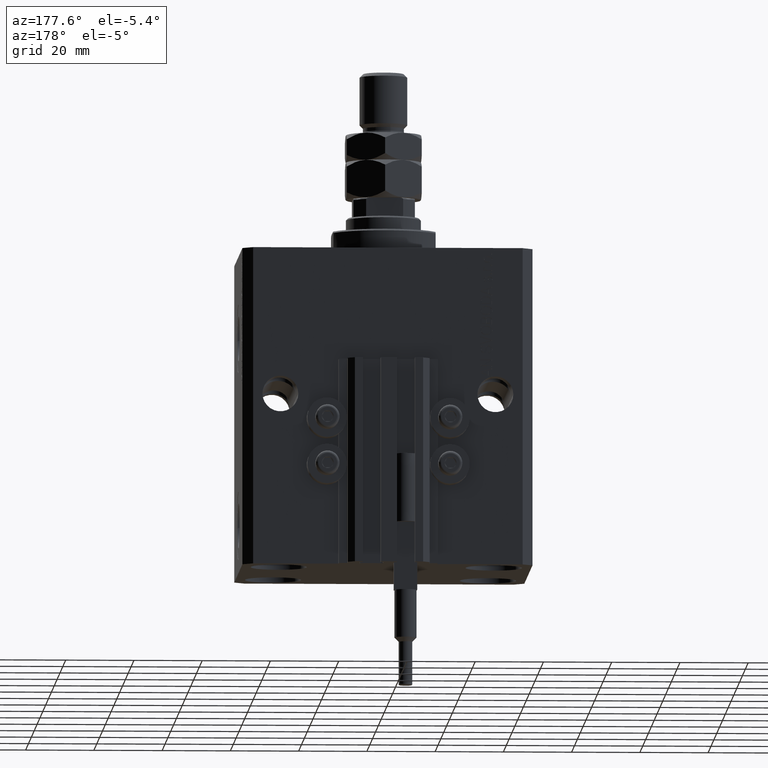
[diagram: clean part render]
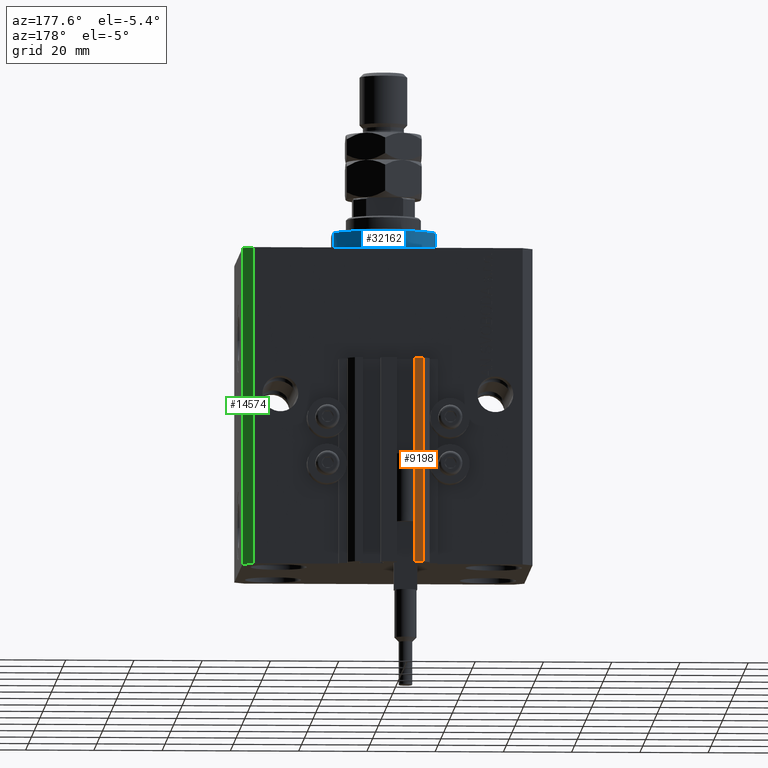
[diagram: same view with three faces highlighted in distinct colors, each labeled with its STEP entity id]
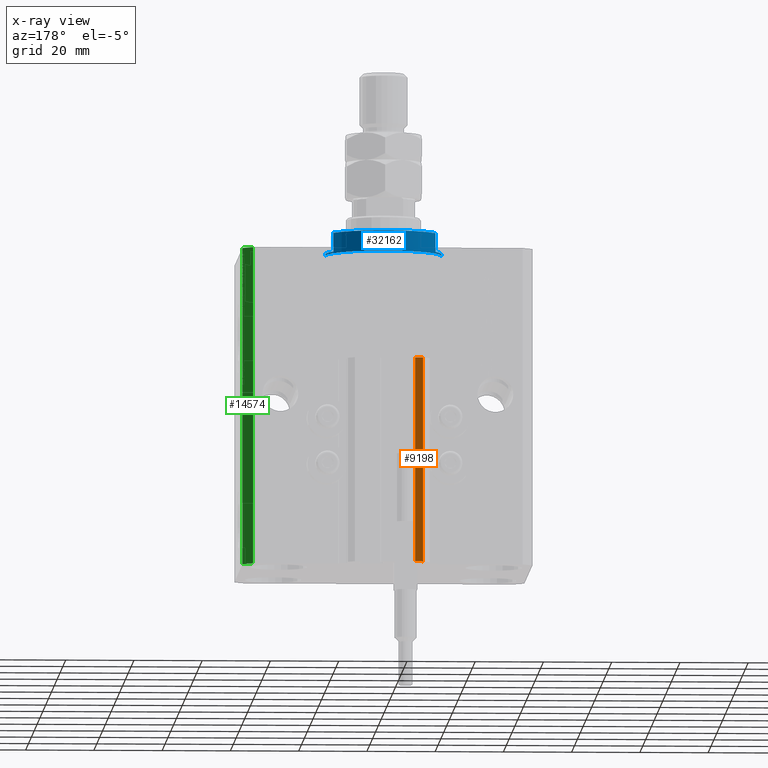
[diagram: x-ray of the same camera — body ghosted, the three highlighted faces saturated]
A machine part, auxiliary view with three faces highlighted in distinct colors.
The next image is the same camera in x-ray (body ghosted, the three faces saturated) — at least one of them is partly hidden behind the body in this view.
Their STEP definitions:

[orange] entity #9198 — the highlighted planar face has unit normal (0, 1, 0).
#1299 = CARTESIAN_POINT ( 'NONE',  ( -7.650000000000002132, 39.49999999999999289, -93.00000000000000000 ) ) ;
#1666 = VECTOR ( 'NONE', #2473, 1000.000000000000000 ) ;
#1741 = LINE ( 'NONE', #48228, #31364 ) ;
#2199 = EDGE_CURVE ( 'NONE', #26893, #36979, #32834, .T. ) ;
#2216 = LINE ( 'NONE', #17574, #1666 ) ;
#2473 = DIRECTION ( 'NONE',  ( 0.000000000000000000, 0.000000000000000000, 1.000000000000000000 ) ) ;
#5850 = CARTESIAN_POINT ( 'NONE',  ( -7.650000000000002132, 39.49999999999999289, -93.00000000000000000 ) ) ;
#6522 = CARTESIAN_POINT ( 'NONE',  ( -7.650000000000002132, 39.49999999999999289, -33.00000000000000000 ) ) ;
#8369 = CARTESIAN_POINT ( 'NONE',  ( -7.650000000000002132, 39.49999999999999289, -93.00000000000000000 ) ) ;
#9198 = ADVANCED_FACE ( 'NONE', ( #22256 ), #21479, .T. ) ;
#11066 = ORIENTED_EDGE ( 'NONE', *, *, #38648, .F. ) ;
#13662 = DIRECTION ( 'NONE',  ( 0.000000000000000000, 0.000000000000000000, 1.000000000000000000 ) ) ;
#17420 = DIRECTION ( 'NONE',  ( 0.000000000000000000, 1.000000000000000000, -0.000000000000000000 ) ) ;
#17574 = CARTESIAN_POINT ( 'NONE',  ( -7.650000000000002132, 39.49999999999999289, -93.00000000000000000 ) ) ;
#17851 = ORIENTED_EDGE ( 'NONE', *, *, #21621, .F. ) ;
#19033 = CARTESIAN_POINT ( 'NONE',  ( -7.650000000000002132, 39.49999999999999289, -33.00000000000000000 ) ) ;
#19487 = VERTEX_POINT ( 'NONE', #47500 ) ;
#19995 = VECTOR ( 'NONE', #28299, 1000.000000000000000 ) ;
#21479 = PLANE ( 'NONE',  #28546 ) ;
#21621 = EDGE_CURVE ( 'NONE', #40029, #19487, #41397, .T. ) ;
#22256 = FACE_OUTER_BOUND ( 'NONE', #32160, .T. ) ;
#23164 = EDGE_CURVE ( 'NONE', #36979, #19487, #1741, .T. ) ;
#26893 = VERTEX_POINT ( 'NONE', #8369 ) ;
#28299 = DIRECTION ( 'NONE',  ( -1.000000000000000000, 0.000000000000000000, 0.000000000000000000 ) ) ;
#28546 = AXIS2_PLACEMENT_3D ( 'NONE', #5850, #17420, #13662 ) ;
#31295 = VECTOR ( 'NONE', #37595, 1000.000000000000000 ) ;
#31364 = VECTOR ( 'NONE', #44442, 1000.000000000000000 ) ;
#32160 = EDGE_LOOP ( 'NONE', ( #17851, #11066, #48623, #32418 ) ) ;
#32418 = ORIENTED_EDGE ( 'NONE', *, *, #23164, .T. ) ;
#32834 = LINE ( 'NONE', #1299, #19995 ) ;
#36979 = VERTEX_POINT ( 'NONE', #39005 ) ;
#37595 = DIRECTION ( 'NONE',  ( -1.000000000000000000, 0.000000000000000000, 0.000000000000000000 ) ) ;
#38648 = EDGE_CURVE ( 'NONE', #26893, #40029, #2216, .T. ) ;
#39005 = CARTESIAN_POINT ( 'NONE',  ( -10.00000000000000000, 39.49999999999999289, -93.00000000000000000 ) ) ;
#40029 = VERTEX_POINT ( 'NONE', #19033 ) ;
#41397 = LINE ( 'NONE', #6522, #31295 ) ;
#44442 = DIRECTION ( 'NONE',  ( 0.000000000000000000, 0.000000000000000000, 1.000000000000000000 ) ) ;
#47500 = CARTESIAN_POINT ( 'NONE',  ( -10.00000000000000000, 39.49999999999999289, -33.00000000000000000 ) ) ;
#48228 = CARTESIAN_POINT ( 'NONE',  ( -10.00000000000000000, 39.49999999999999289, -93.00000000000000000 ) ) ;
#48623 = ORIENTED_EDGE ( 'NONE', *, *, #2199, .T. ) ;

[blue] entity #32162 — the highlighted cylindrical surface (partial cylindrical patch) has radius 17 mm, axis along (0, 0, -1).
#1259 = CARTESIAN_POINT ( 'NONE',  ( -17.00000000000000000, 2.081899558550500280E-15, -7.000000000000000000 ) ) ;
#1295 = EDGE_CURVE ( 'NONE', #30329, #4004, #27523, .T. ) ;
#2275 = DIRECTION ( 'NONE',  ( 0.000000000000000000, 0.000000000000000000, -1.000000000000000000 ) ) ;
#2585 = DIRECTION ( 'NONE',  ( 0.000000000000000000, 0.000000000000000000, -1.000000000000000000 ) ) ;
#3464 = CARTESIAN_POINT ( 'NONE',  ( 0.000000000000000000, 0.000000000000000000, -6.500000000000000000 ) ) ;
#4004 = VERTEX_POINT ( 'NONE', #8949 ) ;
#4175 = VECTOR ( 'NONE', #21753, 1000.000000000000000 ) ;
#6370 = CARTESIAN_POINT ( 'NONE',  ( -15.00000000000000000, 8.000000000000001776, -7.000000000000000000 ) ) ;
#7119 = CARTESIAN_POINT ( 'NONE',  ( -15.00000000000000000, 8.000000000000001776, -6.500000000000000888 ) ) ;
#7307 = CIRCLE ( 'NONE', #29048, 17.00000000000000000 ) ;
#7990 = DIRECTION ( 'NONE',  ( -1.000000000000000000, 0.000000000000000000, 0.000000000000000000 ) ) ;
#8949 = CARTESIAN_POINT ( 'NONE',  ( -17.00000000000000000, 2.081899558550500280E-15, -0.4999999999999995559 ) ) ;
#9112 = VERTEX_POINT ( 'NONE', #24775 ) ;
#10799 = DIRECTION ( 'NONE',  ( 0.000000000000000000, 0.000000000000000000, 1.000000000000000000 ) ) ;
#10867 = CARTESIAN_POINT ( 'NONE',  ( 0.000000000000000000, 0.000000000000000000, -1.000000000000000000 ) ) ;
#10917 = AXIS2_PLACEMENT_3D ( 'NONE', #10867, #2275, #37136 ) ;
#11650 = VECTOR ( 'NONE', #19705, 1000.000000000000000 ) ;
#11725 = ORIENTED_EDGE ( 'NONE', *, *, #38029, .T. ) ;
#11815 = ORIENTED_EDGE ( 'NONE', *, *, #46725, .F. ) ;
#12704 = DIRECTION ( 'NONE',  ( 1.000000000000000000, 0.000000000000000000, 0.000000000000000000 ) ) ;
#13139 = AXIS2_PLACEMENT_3D ( 'NONE', #44788, #2585, #17943 ) ;
#14711 = ORIENTED_EDGE ( 'NONE', *, *, #1295, .T. ) ;
#14729 = EDGE_CURVE ( 'NONE', #41295, #9112, #28616, .T. ) ;
#15642 = LINE ( 'NONE', #15889, #46590 ) ;
#15889 = CARTESIAN_POINT ( 'NONE',  ( 17.00000000000000000, 0.000000000000000000, -7.000000000000000000 ) ) ;
#16478 = CYLINDRICAL_SURFACE ( 'NONE', #24114, 17.00000000000000000 ) ;
#17299 = VERTEX_POINT ( 'NONE', #43954 ) ;
#17943 = DIRECTION ( 'NONE',  ( -1.000000000000000000, 0.000000000000000000, 0.000000000000000000 ) ) ;
#19518 = EDGE_CURVE ( 'NONE', #9112, #48933, #15642, .T. ) ;
#19705 = DIRECTION ( 'NONE',  ( -0.000000000000000000, -0.000000000000000000, 1.000000000000000000 ) ) ;
#20510 = DIRECTION ( 'NONE',  ( -0.000000000000000000, -0.000000000000000000, 1.000000000000000000 ) ) ;
#20585 = CARTESIAN_POINT ( 'NONE',  ( 15.00000000000000000, 8.000000000000001776, -6.500000000000000888 ) ) ;
#20702 = DIRECTION ( 'NONE',  ( 1.000000000000000000, 0.000000000000000000, 0.000000000000000000 ) ) ;
#21753 = DIRECTION ( 'NONE',  ( -0.000000000000000000, -0.000000000000000000, 1.000000000000000000 ) ) ;
#22032 = EDGE_CURVE ( 'NONE', #4004, #48933, #44262, .T. ) ;
#24114 = AXIS2_PLACEMENT_3D ( 'NONE', #39510, #20510, #12704 ) ;
#24775 = CARTESIAN_POINT ( 'NONE',  ( 17.00000000000000000, 0.000000000000000000, -1.000000000000000000 ) ) ;
#24942 = ORIENTED_EDGE ( 'NONE', *, *, #14729, .F. ) ;
#25581 = VECTOR ( 'NONE', #38915, 1000.000000000000000 ) ;
#25799 = LINE ( 'NONE', #6370, #4175 ) ;
#27523 = LINE ( 'NONE', #1259, #25581 ) ;
#28059 = VERTEX_POINT ( 'NONE', #20585 ) ;
#28616 = CIRCLE ( 'NONE', #10917, 17.00000000000000000 ) ;
#29048 = AXIS2_PLACEMENT_3D ( 'NONE', #3464, #10799, #7990 ) ;
#30208 = ORIENTED_EDGE ( 'NONE', *, *, #37279, .T. ) ;
#30329 = VERTEX_POINT ( 'NONE', #48705 ) ;
#31316 = DIRECTION ( 'NONE',  ( -0.000000000000000000, -0.000000000000000000, 1.000000000000000000 ) ) ;
#31629 = ORIENTED_EDGE ( 'NONE', *, *, #19518, .F. ) ;
#32162 = ADVANCED_FACE ( 'NONE', ( #47349 ), #16478, .T. ) ;
#34397 = CARTESIAN_POINT ( 'NONE',  ( 15.00000000000000000, 8.000000000000001776, -7.000000000000000000 ) ) ;
#35474 = ORIENTED_EDGE ( 'NONE', *, *, #22032, .T. ) ;
#36317 = CARTESIAN_POINT ( 'NONE',  ( 14.99999999999999645, 8.000000000000003553, -1.000000000000000000 ) ) ;
#36557 = CIRCLE ( 'NONE', #13139, 17.00000000000000000 ) ;
#37136 = DIRECTION ( 'NONE',  ( -1.000000000000000000, 0.000000000000000000, 0.000000000000000000 ) ) ;
#37279 = EDGE_CURVE ( 'NONE', #48333, #17299, #25799, .T. ) ;
#38029 = EDGE_CURVE ( 'NONE', #28059, #48333, #7307, .T. ) ;
#38915 = DIRECTION ( 'NONE',  ( -0.000000000000000000, -0.000000000000000000, 1.000000000000000000 ) ) ;
#38943 = LINE ( 'NONE', #34397, #11650 ) ;
#39391 = AXIS2_PLACEMENT_3D ( 'NONE', #48028, #40441, #20702 ) ;
#39510 = CARTESIAN_POINT ( 'NONE',  ( 0.000000000000000000, 0.000000000000000000, -7.000000000000000000 ) ) ;
#40441 = DIRECTION ( 'NONE',  ( -0.000000000000000000, -0.000000000000000000, -1.000000000000000000 ) ) ;
#41295 = VERTEX_POINT ( 'NONE', #36317 ) ;
#42118 = CARTESIAN_POINT ( 'NONE',  ( 17.00000000000000000, 0.000000000000000000, -0.4999999999999995559 ) ) ;
#42320 = ORIENTED_EDGE ( 'NONE', *, *, #43843, .F. ) ;
#43843 = EDGE_CURVE ( 'NONE', #30329, #17299, #36557, .T. ) ;
#43954 = CARTESIAN_POINT ( 'NONE',  ( -14.99999999999999645, 8.000000000000003553, -1.000000000000000000 ) ) ;
#44262 = CIRCLE ( 'NONE', #39391, 17.00000000000000000 ) ;
#44788 = CARTESIAN_POINT ( 'NONE',  ( 0.000000000000000000, 0.000000000000000000, -1.000000000000000000 ) ) ;
#46590 = VECTOR ( 'NONE', #31316, 1000.000000000000000 ) ;
#46725 = EDGE_CURVE ( 'NONE', #28059, #41295, #38943, .T. ) ;
#46807 = EDGE_LOOP ( 'NONE', ( #42320, #14711, #35474, #31629, #24942, #11815, #11725, #30208 ) ) ;
#47349 = FACE_OUTER_BOUND ( 'NONE', #46807, .T. ) ;
#48028 = CARTESIAN_POINT ( 'NONE',  ( 0.000000000000000000, 0.000000000000000000, -0.4999999999999995559 ) ) ;
#48333 = VERTEX_POINT ( 'NONE', #7119 ) ;
#48705 = CARTESIAN_POINT ( 'NONE',  ( -17.00000000000000000, 2.081899558550500280E-15, -1.000000000000000000 ) ) ;
#48933 = VERTEX_POINT ( 'NONE', #42118 ) ;

[green] entity #14574 — the highlighted planar face has unit normal (0.7071, 0.7071, 0).
#60 = EDGE_CURVE ( 'NONE', #3672, #19686, #31857, .T. ) ;
#796 = DIRECTION ( 'NONE',  ( -0.7071067811865355823, 0.7071067811865594521, 0.000000000000000000 ) ) ;
#1039 = CARTESIAN_POINT ( 'NONE',  ( 42.50000000000051870, 28.49999999999995381, -93.00000000000000000 ) ) ;
#1964 = ORIENTED_EDGE ( 'NONE', *, *, #60, .T. ) ;
#2873 = LINE ( 'NONE', #17218, #33795 ) ;
#3491 = VERTEX_POINT ( 'NONE', #21404 ) ;
#3672 = VERTEX_POINT ( 'NONE', #34545 ) ;
#6022 = AXIS2_PLACEMENT_3D ( 'NONE', #1039, #43486, #796 ) ;
#9902 = LINE ( 'NONE', #41507, #47081 ) ;
#10380 = VERTEX_POINT ( 'NONE', #15479 ) ;
#11504 = EDGE_LOOP ( 'NONE', ( #22858, #31106, #1964, #27773 ) ) ;
#12607 = VECTOR ( 'NONE', #40700, 1000.000000000000114 ) ;
#14574 = ADVANCED_FACE ( 'NONE', ( #35395 ), #47772, .T. ) ;
#15479 = CARTESIAN_POINT ( 'NONE',  ( 39.50000000000056843, 31.50000000000000000, 0.000000000000000000 ) ) ;
#17218 = CARTESIAN_POINT ( 'NONE',  ( 39.50000000000056843, 31.50000000000000000, -93.00000000000000000 ) ) ;
#18844 = LINE ( 'NONE', #34530, #43502 ) ;
#19686 = VERTEX_POINT ( 'NONE', #36099 ) ;
#21404 = CARTESIAN_POINT ( 'NONE',  ( 42.50000000000051870, 28.49999999999995381, 0.000000000000000000 ) ) ;
#22858 = ORIENTED_EDGE ( 'NONE', *, *, #43784, .F. ) ;
#22994 = EDGE_CURVE ( 'NONE', #19686, #10380, #2873, .T. ) ;
#25284 = DIRECTION ( 'NONE',  ( -0.7071067811865356934, 0.7071067811865594521, 0.000000000000000000 ) ) ;
#26938 = DIRECTION ( 'NONE',  ( 0.000000000000000000, 0.000000000000000000, 1.000000000000000000 ) ) ;
#27105 = EDGE_CURVE ( 'NONE', #3672, #3491, #18844, .T. ) ;
#27773 = ORIENTED_EDGE ( 'NONE', *, *, #22994, .T. ) ;
#31106 = ORIENTED_EDGE ( 'NONE', *, *, #27105, .F. ) ;
#31857 = LINE ( 'NONE', #45016, #12607 ) ;
#33795 = VECTOR ( 'NONE', #37219, 1000.000000000000000 ) ;
#34530 = CARTESIAN_POINT ( 'NONE',  ( 42.50000000000051870, 28.49999999999995381, -93.00000000000000000 ) ) ;
#34545 = CARTESIAN_POINT ( 'NONE',  ( 42.50000000000051870, 28.49999999999995381, -93.00000000000000000 ) ) ;
#35395 = FACE_OUTER_BOUND ( 'NONE', #11504, .T. ) ;
#36099 = CARTESIAN_POINT ( 'NONE',  ( 39.50000000000056843, 31.50000000000000000, -93.00000000000000000 ) ) ;
#37219 = DIRECTION ( 'NONE',  ( 0.000000000000000000, 0.000000000000000000, 1.000000000000000000 ) ) ;
#40700 = DIRECTION ( 'NONE',  ( -0.7071067811865356934, 0.7071067811865594521, 0.000000000000000000 ) ) ;
#41507 = CARTESIAN_POINT ( 'NONE',  ( 42.50000000000051870, 28.49999999999995381, 0.000000000000000000 ) ) ;
#43486 = DIRECTION ( 'NONE',  ( 0.7071067811865594521, 0.7071067811865355823, -0.000000000000000000 ) ) ;
#43502 = VECTOR ( 'NONE', #26938, 1000.000000000000000 ) ;
#43784 = EDGE_CURVE ( 'NONE', #3491, #10380, #9902, .T. ) ;
#45016 = CARTESIAN_POINT ( 'NONE',  ( 42.50000000000051870, 28.49999999999995381, -93.00000000000000000 ) ) ;
#47081 = VECTOR ( 'NONE', #25284, 1000.000000000000114 ) ;
#47772 = PLANE ( 'NONE',  #6022 ) ;